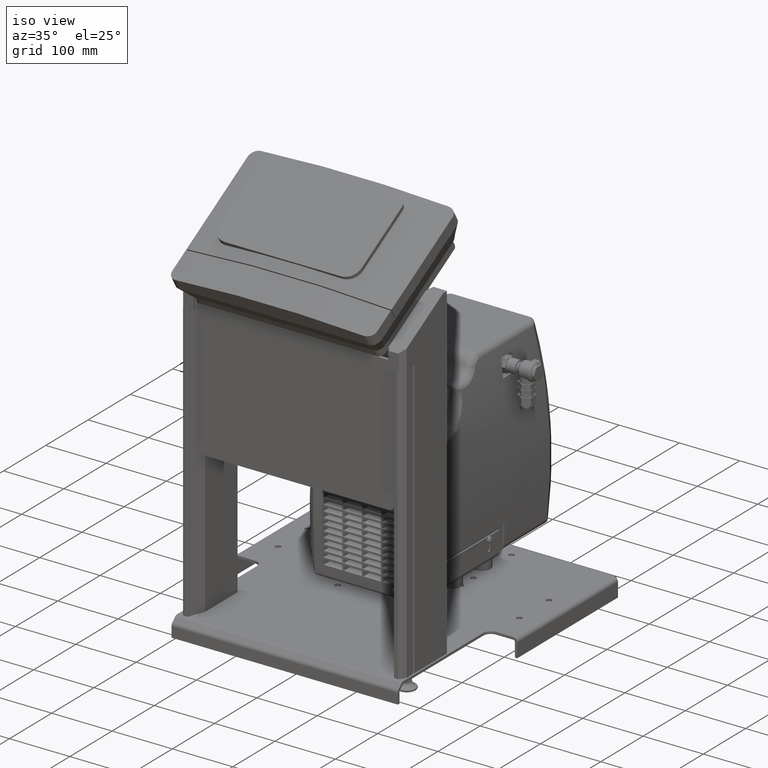
[diagram: clean part render]
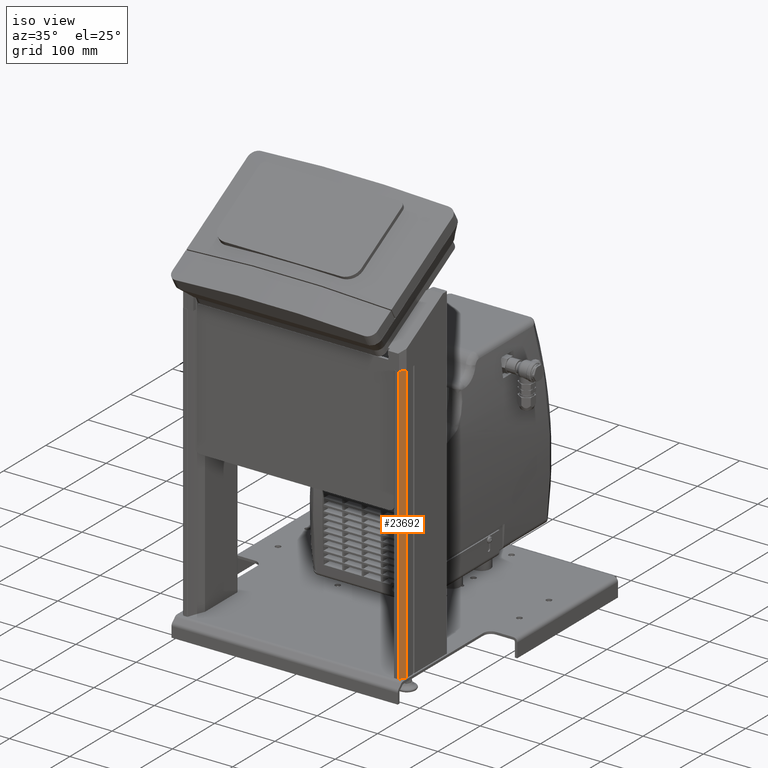
[diagram: same view with one face highlighted and labeled with its STEP entity id]
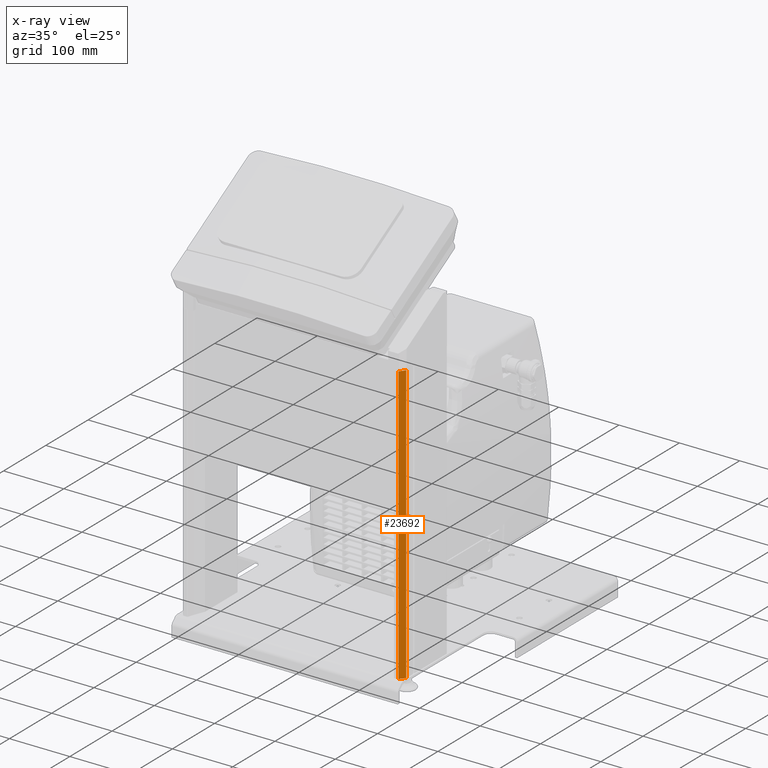
[diagram: x-ray of the same camera — body ghosted, the highlighted face saturated]
A machine part, iso view. The second image highlights one B-rep face of the part: STEP entity #23692.
The next image is the same camera in x-ray: the body ghosted, the highlighted face saturated — about 0% of this face is hidden behind the body in this view.
In plain terms, the highlighted face is a freeform B-spline surface patch.
Its self-contained STEP definition (entity closure, byte-faithful):
#23611=CARTESIAN_POINT('',(184.74668548239606,-210.21568139281214,29.250074235));
#23612=VERTEX_POINT('',#23611);
#23621=CARTESIAN_POINT('',(184.74668548239606,-210.21568139281214,490.25007423499994));
#23622=VERTEX_POINT('',#23621);
#23630=CARTESIAN_POINT('',(184.74668548239606,-210.21568139281214,490.25007423499994));
#23631=DIRECTION('',(0.0,0.0,-1.0));
#23632=VECTOR('',#23631,460.99999999999994);
#23633=LINE('',#23630,#23632);
#23634=EDGE_CURVE('',#23622,#23612,#23633,.T.);
#23639=CARTESIAN_POINT('',(100.80481954251667,-156.16749979887464,490.25007423499994));
#23640=CARTESIAN_POINT('',(100.80481954251667,-156.16749979887464,29.250074235));
#23641=CARTESIAN_POINT('',(71.382004468345485,-196.59395095540219,490.25007423499994));
#23642=CARTESIAN_POINT('',(71.382004468345485,-196.59395095540219,29.250074235));
#23643=CARTESIAN_POINT('',(111.80845562487303,-226.01676602957338,490.25007423499994));
#23644=CARTESIAN_POINT('',(111.80845562487303,-226.01676602957338,29.250074235));
#23645=CARTESIAN_POINT('',(152.23490678140058,-255.43958110374456,490.25007423499994));
#23646=CARTESIAN_POINT('',(152.23490678140058,-255.43958110374456,29.250074235));
#23647=CARTESIAN_POINT('',(181.65772185557176,-215.01312994721701,490.25007423499994));
#23648=CARTESIAN_POINT('',(181.65772185557176,-215.01312994721701,29.250074235));
#23649=CARTESIAN_POINT('',(211.08053692974295,-174.58667879068946,490.25007423499994));
#23650=CARTESIAN_POINT('',(211.08053692974295,-174.58667879068946,29.250074235));
#23651=CARTESIAN_POINT('',(170.6540857732154,-145.16386371651828,490.25007423499994));
#23652=CARTESIAN_POINT('',(170.6540857732154,-145.16386371651828,29.250074235));
#23653=CARTESIAN_POINT('',(130.22763461668785,-115.7410486423471,490.25007423499994));
#23654=CARTESIAN_POINT('',(130.22763461668785,-115.7410486423471,29.250074235));
#23655=CARTESIAN_POINT('',(100.80481954251667,-156.16749979887464,490.25007423499994));
#23656=CARTESIAN_POINT('',(100.80481954251667,-156.16749979887464,29.250074235));
#23664=(BOUNDED_SURFACE()B_SPLINE_SURFACE(1,2,((#23639,#23641,#23643,#23645,#23647,#23649,#23651,#23653,#23655),(#23640,#23642,#23644,#23646,#23648,#23650,#23652,#23654,#23656)),.UNSPECIFIED.,.F.,.T.,.U.)B_SPLINE_SURFACE_WITH_KNOTS((2,2),(3,2,2,2,3),(0.0,9.220000000000031),(0.0,78.539816339744561,157.07963267948912,235.61944901923368,314.15926535897825),.UNSPECIFIED.)GEOMETRIC_REPRESENTATION_ITEM()RATIONAL_B_SPLINE_SURFACE(((1.0,0.707106781186548,1.0,0.707106781186548,1.0,0.707106781186548,1.0,0.707106781186548,1.0),(1.0,0.707106781186548,1.0,0.707106781186548,1.0,0.707106781186548,1.0,0.707106781186548,1.0)))REPRESENTATION_ITEM('')SURFACE());
#23665=CARTESIAN_POINT('',(178.04228926226847,-219.42740860666817,29.250074235));
#23666=VERTEX_POINT('',#23665);
#23667=CARTESIAN_POINT('',(141.23127069904422,-185.59031487304583,29.250074234999943));
#23668=DIRECTION('',(0.0,0.0,-1.0));
#23669=DIRECTION('',(0.808529023130554,-0.588456301483426,0.0));
#23670=AXIS2_PLACEMENT_3D('',#23667,#23668,#23669);
#23671=CIRCLE('',#23670,49.999999999999822);
#23672=EDGE_CURVE('',#23612,#23666,#23671,.T.);
#23673=ORIENTED_EDGE('',*,*,#23672,.F.);
#23674=ORIENTED_EDGE('',*,*,#23634,.F.);
#23675=CARTESIAN_POINT('',(178.04228926226847,-219.42740860666817,490.25007423499994));
#23676=VERTEX_POINT('',#23675);
#23677=CARTESIAN_POINT('',(141.23127069904422,-185.59031487304583,490.25007423499994));
#23678=DIRECTION('',(0.0,0.0,-1.0));
#23679=DIRECTION('',(0.808529023130554,-0.588456301483426,0.0));
#23680=AXIS2_PLACEMENT_3D('',#23677,#23678,#23679);
#23681=CIRCLE('',#23680,49.999999999999822);
#23682=EDGE_CURVE('',#23622,#23676,#23681,.T.);
#23683=ORIENTED_EDGE('',*,*,#23682,.T.);
#23684=CARTESIAN_POINT('',(178.04228926226847,-219.42740860666817,490.25007423499994));
#23685=DIRECTION('',(0.0,0.0,-1.0));
#23686=VECTOR('',#23685,460.99999999999994);
#23687=LINE('',#23684,#23686);
#23688=EDGE_CURVE('',#23676,#23666,#23687,.T.);
#23689=ORIENTED_EDGE('',*,*,#23688,.T.);
#23690=EDGE_LOOP('',(#23673,#23674,#23683,#23689));
#23691=FACE_OUTER_BOUND('',#23690,.T.);
#23692=ADVANCED_FACE('',(#23691),#23664,.T.);